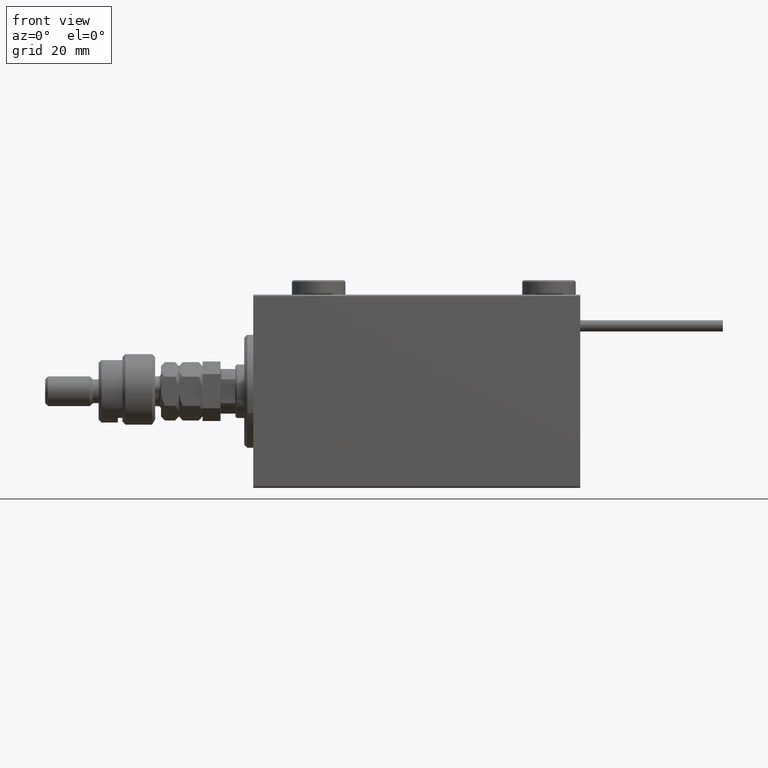
[diagram: clean part render]
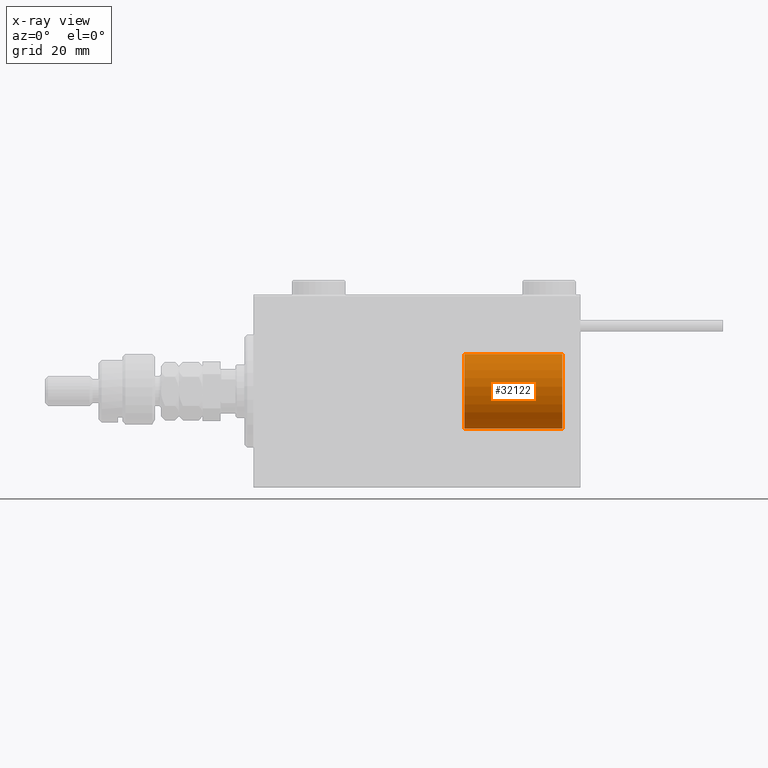
[diagram: x-ray — body ghosted, one internal face saturated and labeled with its STEP entity id]
A machine part, front view, then the same camera in x-ray: the body is ghosted and one INTERNAL B-rep face — a face not visible from any outside direction — is saturated and labeled: STEP entity #32122.
In plain terms, the highlighted cylindrical surface (partial cylindrical patch) has radius 12.5 mm, axis along (1, -0, -0).
Its self-contained STEP definition (entity closure, byte-faithful):
#6625 = CIRCLE ( 'NONE', #44237, 12.50000000000000000 ) ;
#7370 = DIRECTION ( 'NONE',  ( 1.000000000000000000, 0.000000000000000000, 0.000000000000000000 ) ) ;
#10040 = VERTEX_POINT ( 'NONE', #14231 ) ;
#11604 = ORIENTED_EDGE ( 'NONE', *, *, #17443, .F. ) ;
#11861 = EDGE_CURVE ( 'NONE', #31777, #24056, #20784, .T. ) ;
#14231 = CARTESIAN_POINT ( 'NONE',  ( 12.50000000000000000, 1.530808498934191521E-15, 33.00000000000000000 ) ) ;
#16067 = CARTESIAN_POINT ( 'NONE',  ( 0.000000000000000000, 0.000000000000000000, 33.00000000000000000 ) ) ;
#17443 = EDGE_CURVE ( 'NONE', #10040, #43211, #45048, .T. ) ;
#20784 = LINE ( 'NONE', #32866, #30685 ) ;
#21353 = ORIENTED_EDGE ( 'NONE', *, *, #37296, .T. ) ;
#22027 = CYLINDRICAL_SURFACE ( 'NONE', #23987, 12.50000000000000000 ) ;
#23127 = CARTESIAN_POINT ( 'NONE',  ( 12.50000000000000000, 1.530808498934191521E-15, 0.000000000000000000 ) ) ;
#23987 = AXIS2_PLACEMENT_3D ( 'NONE', #26397, #34102, #29975 ) ;
#24056 = VERTEX_POINT ( 'NONE', #30025 ) ;
#24182 = CARTESIAN_POINT ( 'NONE',  ( 12.50000000000000000, 1.530808498934191521E-15, 33.00000000000000000 ) ) ;
#24419 = DIRECTION ( 'NONE',  ( 0.000000000000000000, 0.000000000000000000, 1.000000000000000000 ) ) ;
#26397 = CARTESIAN_POINT ( 'NONE',  ( 0.000000000000000000, 0.000000000000000000, 33.00000000000000000 ) ) ;
#27239 = VECTOR ( 'NONE', #52463, 1000.000000000000000 ) ;
#29975 = DIRECTION ( 'NONE',  ( -1.000000000000000000, 0.000000000000000000, 0.000000000000000000 ) ) ;
#30025 = CARTESIAN_POINT ( 'NONE',  ( -12.50000000000000000, 0.000000000000000000, 0.000000000000000000 ) ) ;
#30685 = VECTOR ( 'NONE', #49642, 1000.000000000000000 ) ;
#31232 = EDGE_CURVE ( 'NONE', #31777, #10040, #41462, .T. ) ;
#31777 = VERTEX_POINT ( 'NONE', #38626 ) ;
#32122 = ADVANCED_FACE ( 'NONE', ( #39027 ), #22027, .T. ) ;
#32825 = DIRECTION ( 'NONE',  ( 1.000000000000000000, 0.000000000000000000, 0.000000000000000000 ) ) ;
#32866 = CARTESIAN_POINT ( 'NONE',  ( -12.50000000000000000, 0.000000000000000000, 33.00000000000000000 ) ) ;
#34102 = DIRECTION ( 'NONE',  ( -0.000000000000000000, -0.000000000000000000, -1.000000000000000000 ) ) ;
#37296 = EDGE_CURVE ( 'NONE', #24056, #43211, #6625, .T. ) ;
#38626 = CARTESIAN_POINT ( 'NONE',  ( -12.50000000000000000, 0.000000000000000000, 33.00000000000000000 ) ) ;
#39027 = FACE_OUTER_BOUND ( 'NONE', #44538, .T. ) ;
#41462 = CIRCLE ( 'NONE', #48482, 12.50000000000000000 ) ;
#41607 = DIRECTION ( 'NONE',  ( 0.000000000000000000, 0.000000000000000000, 1.000000000000000000 ) ) ;
#43211 = VERTEX_POINT ( 'NONE', #23127 ) ;
#44237 = AXIS2_PLACEMENT_3D ( 'NONE', #45292, #24419, #7370 ) ;
#44538 = EDGE_LOOP ( 'NONE', ( #11604, #49602, #51424, #21353 ) ) ;
#45048 = LINE ( 'NONE', #24182, #27239 ) ;
#45292 = CARTESIAN_POINT ( 'NONE',  ( 0.000000000000000000, 0.000000000000000000, 0.000000000000000000 ) ) ;
#48482 = AXIS2_PLACEMENT_3D ( 'NONE', #16067, #41607, #32825 ) ;
#49602 = ORIENTED_EDGE ( 'NONE', *, *, #31232, .F. ) ;
#49642 = DIRECTION ( 'NONE',  ( -0.000000000000000000, -0.000000000000000000, -1.000000000000000000 ) ) ;
#51424 = ORIENTED_EDGE ( 'NONE', *, *, #11861, .T. ) ;
#52463 = DIRECTION ( 'NONE',  ( -0.000000000000000000, -0.000000000000000000, -1.000000000000000000 ) ) ;